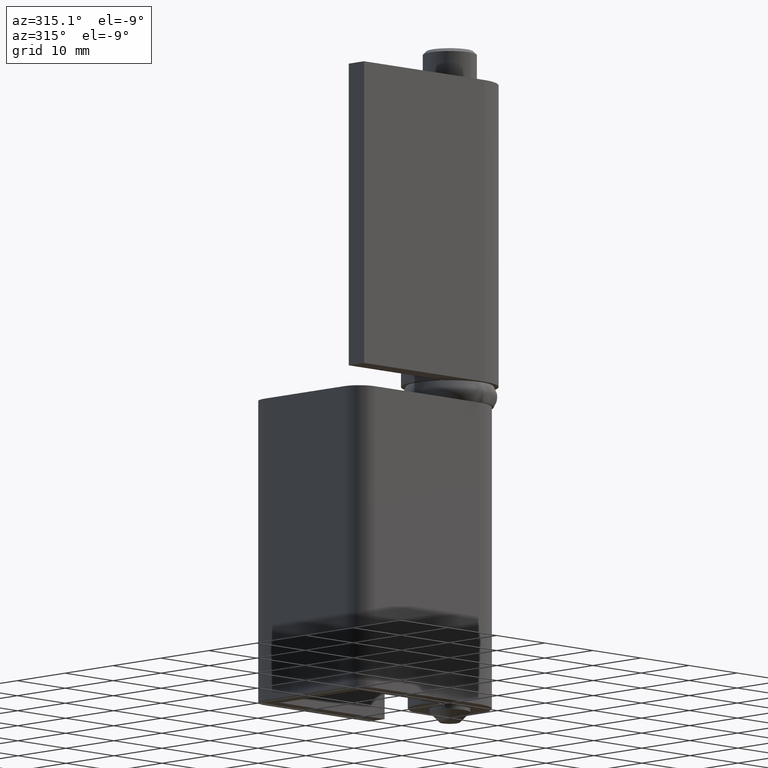
[diagram: clean part render]
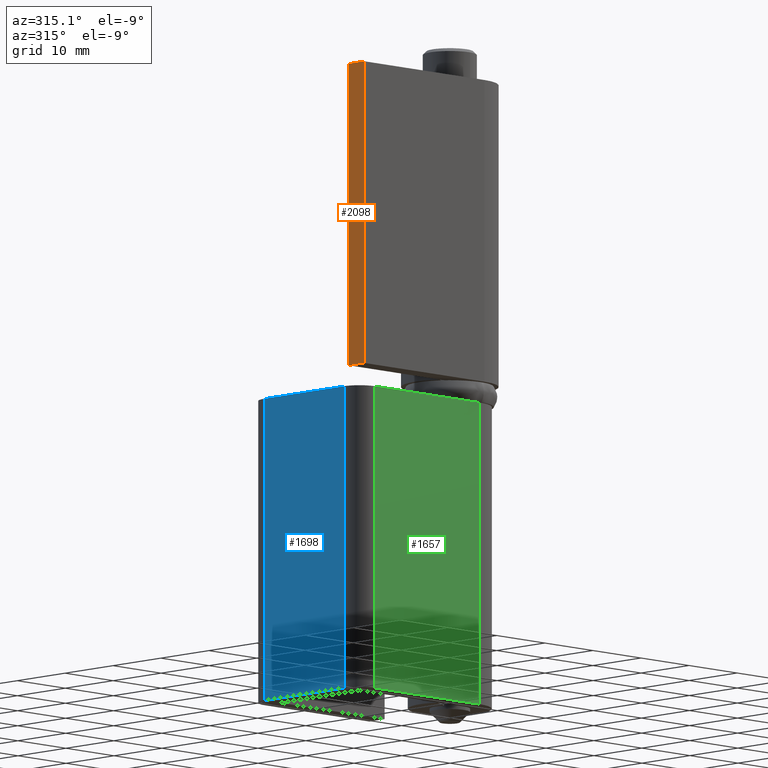
[diagram: same view with three faces highlighted in distinct colors, each labeled with its STEP entity id]
A machine part, auxiliary view with three faces highlighted in distinct colors.
Their STEP definitions:

[orange] entity #2098 — the highlighted face is a freeform B-spline surface patch.
#1832=CARTESIAN_POINT('',(-25.0,-7.199981999999999,95.0));
#1833=VERTEX_POINT('',#1832);
#1888=CARTESIAN_POINT('',(-25.0,-4.0,95.0));
#1889=VERTEX_POINT('',#1888);
#1895=CARTESIAN_POINT('',(-25.0,-7.199981999999999,95.0));
#1896=CARTESIAN_POINT('',(-25.0,-4.0,95.0));
#1897=QUASI_UNIFORM_CURVE('',1,(#1895,#1896),.UNSPECIFIED.,.F.,.U.);
#1898=EDGE_CURVE('',#1833,#1889,#1897,.T.);
#1910=CARTESIAN_POINT('',(-25.0,-7.199981999999999,50.0));
#1911=VERTEX_POINT('',#1910);
#1917=CARTESIAN_POINT('',(-25.0,-4.0,50.0));
#1918=VERTEX_POINT('',#1917);
#1919=CARTESIAN_POINT('',(-25.0,-7.199981999999999,50.0));
#1920=CARTESIAN_POINT('',(-25.0,-4.0,50.0));
#1921=QUASI_UNIFORM_CURVE('',1,(#1919,#1920),.UNSPECIFIED.,.F.,.U.);
#1922=EDGE_CURVE('',#1911,#1918,#1921,.T.);
#2075=CARTESIAN_POINT('',(-25.0,-4.0,50.0));
#2076=CARTESIAN_POINT('',(-25.0,-4.0,95.0));
#2077=QUASI_UNIFORM_CURVE('',1,(#2075,#2076),.UNSPECIFIED.,.F.,.U.);
#2078=EDGE_CURVE('',#1918,#1889,#2077,.T.);
#2083=CARTESIAN_POINT('',(-25.0,-7.359821274932664,97.247749912781273));
#2084=CARTESIAN_POINT('',(-25.0,-7.359821274932664,47.752248880224677));
#2085=CARTESIAN_POINT('',(-25.0,-3.840160810897543,97.247749912781273));
#2086=CARTESIAN_POINT('',(-25.0,-3.840160810897543,47.752248880224677));
#2087=B_SPLINE_SURFACE_WITH_KNOTS('',1,1,((#2083,#2085),(#2084,#2086)),.UNSPECIFIED.,.F.,.F.,.U.,(2,2),(2,2),(0.0,49.495501032556589),(0.0,3.519660464035121),.UNSPECIFIED.);
#2088=ORIENTED_EDGE('',*,*,#1898,.T.);
#2089=ORIENTED_EDGE('',*,*,#2078,.F.);
#2090=ORIENTED_EDGE('',*,*,#1922,.F.);
#2091=CARTESIAN_POINT('',(-25.0,-7.199981999999999,50.0));
#2092=CARTESIAN_POINT('',(-25.0,-7.199981999999999,95.0));
#2093=QUASI_UNIFORM_CURVE('',1,(#2091,#2092),.UNSPECIFIED.,.F.,.U.);
#2094=EDGE_CURVE('',#1911,#1833,#2093,.T.);
#2095=ORIENTED_EDGE('',*,*,#2094,.T.);
#2096=EDGE_LOOP('',(#2088,#2089,#2090,#2095));
#2097=FACE_OUTER_BOUND('',#2096,.T.);
#2098=ADVANCED_FACE('',(#2097),#2087,.F.);

[blue] entity #1698 — the highlighted face is a freeform B-spline surface patch.
#1345=CARTESIAN_POINT('',(-25.0,-3.004381779436075,2.0));
#1346=VERTEX_POINT('',#1345);
#1360=CARTESIAN_POINT('',(-25.000003000000000,13.600002279252680,2.0));
#1361=VERTEX_POINT('',#1360);
#1362=CARTESIAN_POINT('',(-25.000003000000000,13.600002279252680,2.0));
#1363=CARTESIAN_POINT('',(-25.0,-3.004381779436075,2.0));
#1364=QUASI_UNIFORM_CURVE('',1,(#1362,#1363),.UNSPECIFIED.,.F.,.U.);
#1365=EDGE_CURVE('',#1361,#1346,#1364,.T.);
#1439=CARTESIAN_POINT('',(-25.000003000000000,13.600002279252680,47.0));
#1440=VERTEX_POINT('',#1439);
#1454=CARTESIAN_POINT('',(-25.0,-3.004381779436075,47.0));
#1455=VERTEX_POINT('',#1454);
#1456=CARTESIAN_POINT('',(-25.000003000000000,13.600002279252680,47.0));
#1457=CARTESIAN_POINT('',(-25.0,-3.004381779436075,47.0));
#1458=QUASI_UNIFORM_CURVE('',1,(#1456,#1457),.UNSPECIFIED.,.F.,.U.);
#1459=EDGE_CURVE('',#1440,#1455,#1458,.T.);
#1675=CARTESIAN_POINT('',(-25.0,-3.004381779436075,47.0));
#1676=CARTESIAN_POINT('',(-25.0,-3.004381779436075,2.0));
#1677=QUASI_UNIFORM_CURVE('',1,(#1675,#1676),.UNSPECIFIED.,.F.,.U.);
#1678=EDGE_CURVE('',#1455,#1346,#1677,.T.);
#1683=CARTESIAN_POINT('',(-25.0,-3.833770886855139,49.247749912781281));
#1684=CARTESIAN_POINT('',(-25.0,-3.833770886855139,-0.247751119775324));
#1685=CARTESIAN_POINT('',(-25.0,14.429391683581271,49.247749912781281));
#1686=CARTESIAN_POINT('',(-25.0,14.429391683581271,-0.247751119775324));
#1687=B_SPLINE_SURFACE_WITH_KNOTS('',1,1,((#1683,#1685),(#1684,#1686)),.UNSPECIFIED.,.F.,.F.,.U.,(2,2),(2,2),(0.0,49.495501032556596),(0.0,18.263162570436410),.UNSPECIFIED.);
#1688=ORIENTED_EDGE('',*,*,#1365,.T.);
#1689=ORIENTED_EDGE('',*,*,#1678,.F.);
#1690=ORIENTED_EDGE('',*,*,#1459,.F.);
#1691=CARTESIAN_POINT('',(-25.000003000000000,13.600002279252680,47.0));
#1692=CARTESIAN_POINT('',(-25.000003000000000,13.600002279252680,2.0));
#1693=QUASI_UNIFORM_CURVE('',1,(#1691,#1692),.UNSPECIFIED.,.F.,.U.);
#1694=EDGE_CURVE('',#1440,#1361,#1693,.T.);
#1695=ORIENTED_EDGE('',*,*,#1694,.T.);
#1696=EDGE_LOOP('',(#1688,#1689,#1690,#1695));
#1697=FACE_OUTER_BOUND('',#1696,.T.);
#1698=ADVANCED_FACE('',(#1697),#1687,.F.);

[green] entity #1657 — the highlighted face is a freeform B-spline surface patch.
#1317=CARTESIAN_POINT('',(0.0,-6.199997000000000,2.0));
#1318=VERTEX_POINT('',#1317);
#1338=CARTESIAN_POINT('',(-21.800003167551601,-6.200000000000000,2.0));
#1339=VERTEX_POINT('',#1338);
#1340=CARTESIAN_POINT('',(-21.800003167551601,-6.200000000000000,2.0));
#1341=CARTESIAN_POINT('',(0.0,-6.199997000000000,2.0));
#1342=QUASI_UNIFORM_CURVE('',1,(#1340,#1341),.UNSPECIFIED.,.F.,.U.);
#1343=EDGE_CURVE('',#1339,#1318,#1342,.T.);
#1461=CARTESIAN_POINT('',(-21.800003167551601,-6.200000000000000,47.0));
#1462=VERTEX_POINT('',#1461);
#1476=CARTESIAN_POINT('',(0.0,-6.199997000000000,47.0));
#1477=VERTEX_POINT('',#1476);
#1478=CARTESIAN_POINT('',(-21.800003167551601,-6.200000000000000,47.0));
#1479=CARTESIAN_POINT('',(0.0,-6.199997000000000,47.0));
#1480=QUASI_UNIFORM_CURVE('',1,(#1478,#1479),.UNSPECIFIED.,.F.,.U.);
#1481=EDGE_CURVE('',#1462,#1477,#1480,.T.);
#1634=CARTESIAN_POINT('',(0.0,-6.199997000000000,47.0));
#1635=CARTESIAN_POINT('',(0.0,-6.199997000000000,2.0));
#1636=QUASI_UNIFORM_CURVE('',1,(#1634,#1635),.UNSPECIFIED.,.F.,.U.);
#1637=EDGE_CURVE('',#1477,#1318,#1636,.T.);
#1642=CARTESIAN_POINT('',(-22.888913283518171,-6.199997000000000,-0.247749912781268));
#1643=CARTESIAN_POINT('',(-22.888913283518171,-6.199997000000000,49.247751119775337));
#1644=CARTESIAN_POINT('',(1.088910700688215,-6.199997000000000,-0.247749912781268));
#1645=CARTESIAN_POINT('',(1.088910700688215,-6.199997000000000,49.247751119775337));
#1646=B_SPLINE_SURFACE_WITH_KNOTS('',1,1,((#1642,#1644),(#1643,#1645)),.UNSPECIFIED.,.F.,.F.,.U.,(2,2),(2,2),(0.0,49.495501032556596),(0.0,23.977823984206388),.UNSPECIFIED.);
#1647=ORIENTED_EDGE('',*,*,#1343,.T.);
#1648=ORIENTED_EDGE('',*,*,#1637,.F.);
#1649=ORIENTED_EDGE('',*,*,#1481,.F.);
#1650=CARTESIAN_POINT('',(-21.800003167551601,-6.200000000000000,47.0));
#1651=CARTESIAN_POINT('',(-21.800003167551601,-6.200000000000000,2.0));
#1652=QUASI_UNIFORM_CURVE('',1,(#1650,#1651),.UNSPECIFIED.,.F.,.U.);
#1653=EDGE_CURVE('',#1462,#1339,#1652,.T.);
#1654=ORIENTED_EDGE('',*,*,#1653,.T.);
#1655=EDGE_LOOP('',(#1647,#1648,#1649,#1654));
#1656=FACE_OUTER_BOUND('',#1655,.T.);
#1657=ADVANCED_FACE('',(#1656),#1646,.F.);